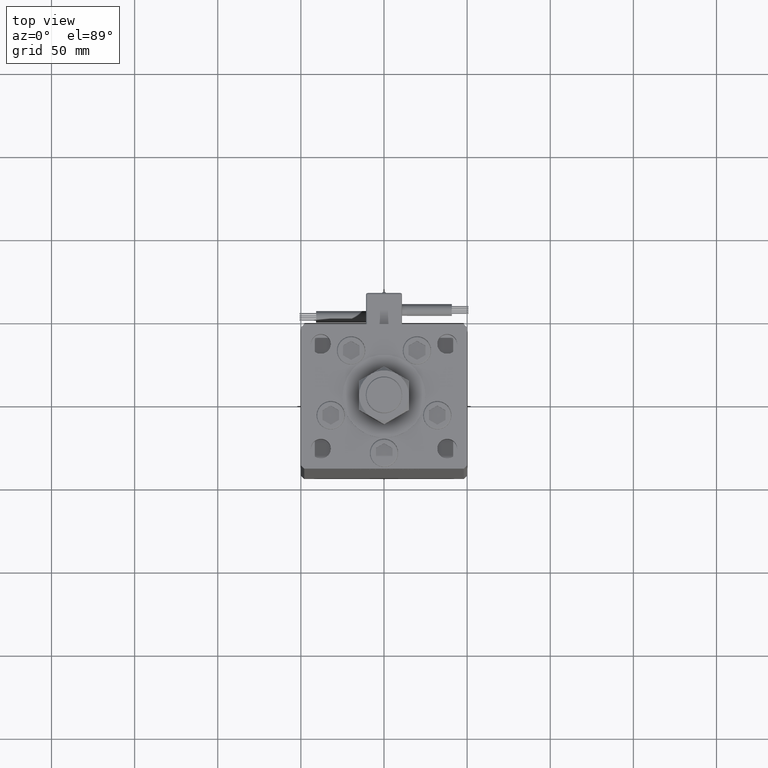
[diagram: clean part render]
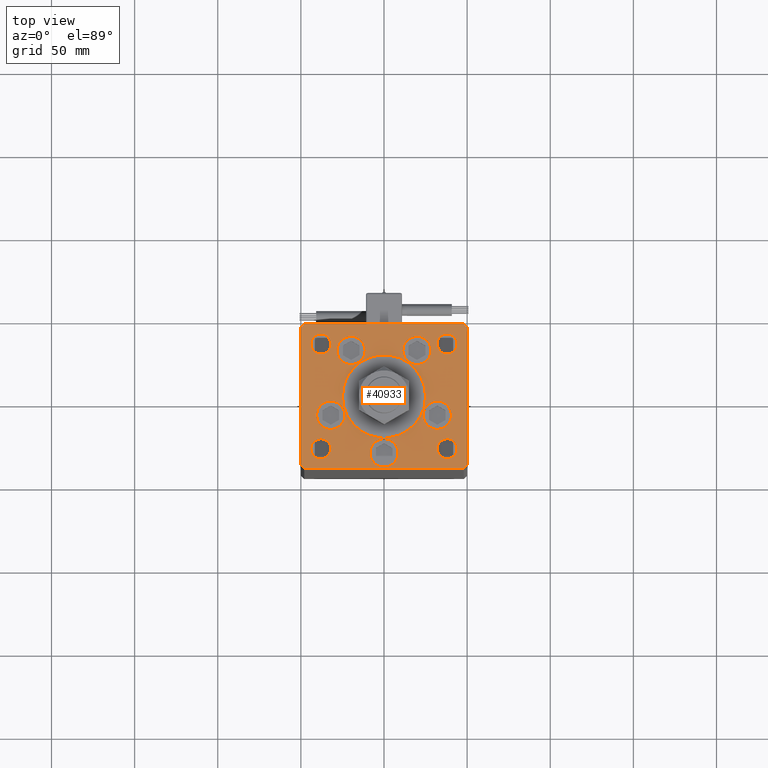
[diagram: same view with one face highlighted and labeled with its STEP entity id]
A machine part, top view. The second image highlights one B-rep face of the part: STEP entity #40933.
In plain terms, the highlighted planar face has unit normal (0, 0, 1).
Its self-contained STEP definition (entity closure, byte-faithful):
#943 = EDGE_CURVE ( 'NONE', #27503, #17946, #10456, .T. ) ;
#1090 = CARTESIAN_POINT ( 'NONE',  ( 32.00000000000000000, 31.50000000000000000, 0.000000000000000000 ) ) ;
#1345 = DIRECTION ( 'NONE',  ( 1.000000000000000000, 0.000000000000000000, 0.000000000000000000 ) ) ;
#1443 = EDGE_CURVE ( 'NONE', #28434, #38437, #25243, .T. ) ;
#1500 = CARTESIAN_POINT ( 'NONE',  ( 44.00000000000001421, -31.50000000000000711, 0.000000000000000000 ) ) ;
#1610 = ORIENTED_EDGE ( 'NONE', *, *, #32840, .T. ) ;
#1809 = CARTESIAN_POINT ( 'NONE',  ( -50.00000000000000711, 41.49999999999999289, 0.000000000000000000 ) ) ;
#1891 = EDGE_CURVE ( 'NONE', #37042, #15103, #17235, .T. ) ;
#2333 = EDGE_CURVE ( 'NONE', #27229, #22838, #11717, .T. ) ;
#2434 = DIRECTION ( 'NONE',  ( 1.000000000000000000, 0.000000000000000000, 0.000000000000000000 ) ) ;
#2493 = DIRECTION ( 'NONE',  ( 1.000000000000000000, 0.000000000000000000, 0.000000000000000000 ) ) ;
#2782 = EDGE_CURVE ( 'NONE', #22838, #27229, #19124, .T. ) ;
#2933 = CARTESIAN_POINT ( 'NONE',  ( -25.00000000000000000, -6.938893903907228378E-15, 0.000000000000000000 ) ) ;
#3381 = DIRECTION ( 'NONE',  ( 1.000000000000000000, 0.000000000000000000, 0.000000000000000000 ) ) ;
#3580 = DIRECTION ( 'NONE',  ( 0.000000000000000000, 0.000000000000000000, 1.000000000000000000 ) ) ;
#3759 = CARTESIAN_POINT ( 'NONE',  ( 50.00000000000000000, 41.50000000000000711, 0.000000000000000000 ) ) ;
#4202 = ORIENTED_EDGE ( 'NONE', *, *, #26352, .T. ) ;
#4439 = CARTESIAN_POINT ( 'NONE',  ( 32.00000000000000000, -31.50000000000000711, 0.000000000000000000 ) ) ;
#4495 = DIRECTION ( 'NONE',  ( 0.000000000000000000, 0.000000000000000000, 1.000000000000000000 ) ) ;
#4760 = VERTEX_POINT ( 'NONE', #42660 ) ;
#4927 = CARTESIAN_POINT ( 'NONE',  ( 38.00000000000000711, -31.50000000000000711, 0.000000000000000000 ) ) ;
#4936 = FACE_BOUND ( 'NONE', #13083, .T. ) ;
#5200 = DIRECTION ( 'NONE',  ( -0.000000000000000000, -0.000000000000000000, -1.000000000000000000 ) ) ;
#5339 = ORIENTED_EDGE ( 'NONE', *, *, #46168, .T. ) ;
#5560 = CARTESIAN_POINT ( 'NONE',  ( 38.00000000000000000, 31.50000000000000000, 0.000000000000000000 ) ) ;
#5737 = CARTESIAN_POINT ( 'NONE',  ( 48.00000000000000711, -43.49999999999992184, 0.000000000000000000 ) ) ;
#6134 = DIRECTION ( 'NONE',  ( -0.7071067811865536790, -0.7071067811865414665, 0.000000000000000000 ) ) ;
#6258 = DIRECTION ( 'NONE',  ( 1.000000000000000000, 0.000000000000000000, 0.000000000000000000 ) ) ;
#6315 = AXIS2_PLACEMENT_3D ( 'NONE', #15520, #50049, #46014 ) ;
#6523 = CARTESIAN_POINT ( 'NONE',  ( 23.55550741379015633, -11.33333333333332682, 0.000000000000000000 ) ) ;
#6756 = ORIENTED_EDGE ( 'NONE', *, *, #943, .F. ) ;
#6995 = EDGE_CURVE ( 'NONE', #15676, #12590, #18632, .T. ) ;
#7732 = DIRECTION ( 'NONE',  ( 0.000000000000000000, 0.000000000000000000, 1.000000000000000000 ) ) ;
#7810 = CARTESIAN_POINT ( 'NONE',  ( -50.00000000000000711, 41.49999999999999289, 0.000000000000000000 ) ) ;
#7886 = ORIENTED_EDGE ( 'NONE', *, *, #1443, .F. ) ;
#8276 = VECTOR ( 'NONE', #52710, 1000.000000000000000 ) ;
#8546 = DIRECTION ( 'NONE',  ( 1.000000000000000000, 0.000000000000000000, 0.000000000000000000 ) ) ;
#8712 = VERTEX_POINT ( 'NONE', #55560 ) ;
#9229 = EDGE_CURVE ( 'NONE', #12590, #15562, #22505, .T. ) ;
#9269 = FACE_OUTER_BOUND ( 'NONE', #51298, .T. ) ;
#9365 = CARTESIAN_POINT ( 'NONE',  ( -8.500000000000000000, -34.00000000000000000, 0.000000000000000000 ) ) ;
#9755 = CIRCLE ( 'NONE', #53852, 25.00000000000000000 ) ;
#9765 = VERTEX_POINT ( 'NONE', #9365 ) ;
#10456 = CIRCLE ( 'NONE', #42585, 8.500000000000000000 ) ;
#10830 = CIRCLE ( 'NONE', #16309, 5.999999999999998224 ) ;
#10929 = AXIS2_PLACEMENT_3D ( 'NONE', #32946, #37554, #50489 ) ;
#11698 = ORIENTED_EDGE ( 'NONE', *, *, #2333, .F. ) ;
#11717 = CIRCLE ( 'NONE', #18132, 5.999999999999998224 ) ;
#11949 = CARTESIAN_POINT ( 'NONE',  ( 50.00000000000000000, 41.50000000000000711, 0.000000000000000000 ) ) ;
#12120 = LINE ( 'NONE', #55826, #25130 ) ;
#12469 = CARTESIAN_POINT ( 'NONE',  ( 19.82068048781374969, 27.62499999999998934, 0.000000000000000000 ) ) ;
#12552 = ORIENTED_EDGE ( 'NONE', *, *, #49939, .T. ) ;
#12590 = VERTEX_POINT ( 'NONE', #26617 ) ;
#13083 = EDGE_LOOP ( 'NONE', ( #27819, #12552 ) ) ;
#13677 = CIRCLE ( 'NONE', #10929, 8.500000000000000000 ) ;
#13689 = CARTESIAN_POINT ( 'NONE',  ( -19.82068048781374969, 27.62499999999998934, 0.000000000000000000 ) ) ;
#14471 = AXIS2_PLACEMENT_3D ( 'NONE', #4927, #35152, #48949 ) ;
#15096 = EDGE_CURVE ( 'NONE', #15103, #37042, #34096, .T. ) ;
#15103 = VERTEX_POINT ( 'NONE', #47670 ) ;
#15449 = ORIENTED_EDGE ( 'NONE', *, *, #32297, .T. ) ;
#15520 = CARTESIAN_POINT ( 'NONE',  ( 32.05550741379015989, -11.33333333333332860, 0.000000000000000000 ) ) ;
#15562 = VERTEX_POINT ( 'NONE', #50159 ) ;
#15626 = VERTEX_POINT ( 'NONE', #42650 ) ;
#15676 = VERTEX_POINT ( 'NONE', #20778 ) ;
#15885 = CARTESIAN_POINT ( 'NONE',  ( -11.32068048781375147, 27.62499999999998934, 0.000000000000000000 ) ) ;
#16309 = AXIS2_PLACEMENT_3D ( 'NONE', #31676, #5200, #53822 ) ;
#16385 = AXIS2_PLACEMENT_3D ( 'NONE', #50773, #41869, #1345 ) ;
#16647 = AXIS2_PLACEMENT_3D ( 'NONE', #51115, #46809, #42491 ) ;
#16734 = VERTEX_POINT ( 'NONE', #1500 ) ;
#17130 = ORIENTED_EDGE ( 'NONE', *, *, #6995, .T. ) ;
#17235 = CIRCLE ( 'NONE', #28239, 6.000000000000005329 ) ;
#17898 = FACE_BOUND ( 'NONE', #45267, .T. ) ;
#17946 = VERTEX_POINT ( 'NONE', #34838 ) ;
#17968 = CIRCLE ( 'NONE', #50115, 6.000000000000005329 ) ;
#17989 = ORIENTED_EDGE ( 'NONE', *, *, #20305, .F. ) ;
#18009 = CARTESIAN_POINT ( 'NONE',  ( 40.55550741379015989, -11.33333333333332860, 0.000000000000000000 ) ) ;
#18132 = AXIS2_PLACEMENT_3D ( 'NONE', #5560, #32310, #18801 ) ;
#18161 = CIRCLE ( 'NONE', #14471, 6.000000000000005329 ) ;
#18292 = DIRECTION ( 'NONE',  ( 1.000000000000000000, 0.000000000000000000, 0.000000000000000000 ) ) ;
#18352 = CARTESIAN_POINT ( 'NONE',  ( -50.00000000000000000, -41.50000000000004263, 0.000000000000000000 ) ) ;
#18467 = FACE_BOUND ( 'NONE', #34032, .T. ) ;
#18632 = LINE ( 'NONE', #18352, #37596 ) ;
#18801 = DIRECTION ( 'NONE',  ( 1.000000000000000000, 0.000000000000000000, 0.000000000000000000 ) ) ;
#19097 = ORIENTED_EDGE ( 'NONE', *, *, #49542, .F. ) ;
#19124 = CIRCLE ( 'NONE', #36591, 5.999999999999998224 ) ;
#19228 = ORIENTED_EDGE ( 'NONE', *, *, #1891, .F. ) ;
#19254 = LINE ( 'NONE', #5737, #55455 ) ;
#19979 = CARTESIAN_POINT ( 'NONE',  ( 47.99999999999999289, 43.50000000000000000, 0.000000000000000000 ) ) ;
#20305 = EDGE_CURVE ( 'NONE', #9765, #44774, #39806, .T. ) ;
#20485 = AXIS2_PLACEMENT_3D ( 'NONE', #56575, #30113, #8546 ) ;
#20778 = CARTESIAN_POINT ( 'NONE',  ( -50.00000000000000000, -41.50000000000004263, 0.000000000000000000 ) ) ;
#21750 = EDGE_CURVE ( 'NONE', #29264, #35156, #12120, .T. ) ;
#21918 = FACE_BOUND ( 'NONE', #48090, .T. ) ;
#21998 = DIRECTION ( 'NONE',  ( -0.000000000000000000, -0.000000000000000000, -1.000000000000000000 ) ) ;
#22401 = ORIENTED_EDGE ( 'NONE', *, *, #52169, .F. ) ;
#22488 = FACE_BOUND ( 'NONE', #40945, .T. ) ;
#22505 = LINE ( 'NONE', #52146, #8276 ) ;
#22628 = CARTESIAN_POINT ( 'NONE',  ( 8.500000000000000000, -34.00000000000000000, 0.000000000000000000 ) ) ;
#22680 = CARTESIAN_POINT ( 'NONE',  ( -28.32068048781375325, 27.62499999999998934, 0.000000000000000000 ) ) ;
#22838 = VERTEX_POINT ( 'NONE', #41152 ) ;
#23179 = DIRECTION ( 'NONE',  ( 0.000000000000000000, 0.000000000000000000, 1.000000000000000000 ) ) ;
#24184 = EDGE_LOOP ( 'NONE', ( #5339, #48793 ) ) ;
#24396 = AXIS2_PLACEMENT_3D ( 'NONE', #35736, #39476, #52978 ) ;
#24958 = CARTESIAN_POINT ( 'NONE',  ( 32.05550741379015989, -11.33333333333332860, 0.000000000000000000 ) ) ;
#25130 = VECTOR ( 'NONE', #56403, 1000.000000000000000 ) ;
#25243 = CIRCLE ( 'NONE', #6315, 8.500000000000000000 ) ;
#25346 = DIRECTION ( 'NONE',  ( -0.7071067811865512365, 0.7071067811865439090, 0.000000000000000000 ) ) ;
#25861 = CARTESIAN_POINT ( 'NONE',  ( -32.05550741379015989, -11.33333333333332860, 0.000000000000000000 ) ) ;
#26352 = EDGE_CURVE ( 'NONE', #15562, #15626, #19254, .T. ) ;
#26617 = CARTESIAN_POINT ( 'NONE',  ( -48.00000000000000711, -43.50000000000002842, 0.000000000000000000 ) ) ;
#26745 = VERTEX_POINT ( 'NONE', #26907 ) ;
#26785 = VERTEX_POINT ( 'NONE', #31494 ) ;
#26907 = CARTESIAN_POINT ( 'NONE',  ( -44.00000000000000000, 31.50000000000000000, 0.000000000000000000 ) ) ;
#26991 = DIRECTION ( 'NONE',  ( 0.7071067811865487940, -0.7071067811865463515, 0.000000000000000000 ) ) ;
#27102 = EDGE_LOOP ( 'NONE', ( #33820, #37547 ) ) ;
#27204 = EDGE_LOOP ( 'NONE', ( #22401, #42928 ) ) ;
#27229 = VERTEX_POINT ( 'NONE', #1090 ) ;
#27343 = DIRECTION ( 'NONE',  ( 0.000000000000000000, 1.000000000000000000, 0.000000000000000000 ) ) ;
#27503 = VERTEX_POINT ( 'NONE', #56819 ) ;
#27563 = CARTESIAN_POINT ( 'NONE',  ( 0.000000000000000000, -6.938893903907228378E-15, 0.000000000000000000 ) ) ;
#27714 = LINE ( 'NONE', #1809, #36211 ) ;
#27819 = ORIENTED_EDGE ( 'NONE', *, *, #45536, .T. ) ;
#27956 = AXIS2_PLACEMENT_3D ( 'NONE', #13689, #7732, #18292 ) ;
#28239 = AXIS2_PLACEMENT_3D ( 'NONE', #44770, #23179, #40734 ) ;
#28434 = VERTEX_POINT ( 'NONE', #18009 ) ;
#28496 = CARTESIAN_POINT ( 'NONE',  ( -32.00000000000000000, -31.50000000000000711, 0.000000000000000000 ) ) ;
#29264 = VERTEX_POINT ( 'NONE', #19979 ) ;
#29622 = VERTEX_POINT ( 'NONE', #15885 ) ;
#29822 = ORIENTED_EDGE ( 'NONE', *, *, #2782, .F. ) ;
#29878 = DIRECTION ( 'NONE',  ( 1.000000000000000000, 0.000000000000000000, 0.000000000000000000 ) ) ;
#30059 = VERTEX_POINT ( 'NONE', #53394 ) ;
#30113 = DIRECTION ( 'NONE',  ( 0.000000000000000000, 0.000000000000000000, 1.000000000000000000 ) ) ;
#30586 = EDGE_LOOP ( 'NONE', ( #7886, #43962 ) ) ;
#31121 = FACE_BOUND ( 'NONE', #30586, .T. ) ;
#31494 = CARTESIAN_POINT ( 'NONE',  ( -40.55550741379015989, -11.33333333333332682, 0.000000000000000000 ) ) ;
#31676 = CARTESIAN_POINT ( 'NONE',  ( -38.00000000000000000, 31.50000000000000000, 0.000000000000000000 ) ) ;
#32297 = EDGE_CURVE ( 'NONE', #41730, #29264, #38862, .T. ) ;
#32310 = DIRECTION ( 'NONE',  ( 0.000000000000000000, 0.000000000000000000, 1.000000000000000000 ) ) ;
#32598 = EDGE_CURVE ( 'NONE', #34318, #29622, #49996, .T. ) ;
#32691 = EDGE_CURVE ( 'NONE', #44774, #9765, #55466, .T. ) ;
#32840 = EDGE_CURVE ( 'NONE', #50652, #15676, #27714, .T. ) ;
#32946 = CARTESIAN_POINT ( 'NONE',  ( -19.82068048781374969, 27.62499999999998934, 0.000000000000000000 ) ) ;
#33012 = CIRCLE ( 'NONE', #39429, 8.500000000000000000 ) ;
#33628 = DIRECTION ( 'NONE',  ( 0.000000000000000000, 0.000000000000000000, 1.000000000000000000 ) ) ;
#33701 = VERTEX_POINT ( 'NONE', #2933 ) ;
#33820 = ORIENTED_EDGE ( 'NONE', *, *, #53129, .F. ) ;
#33873 = DIRECTION ( 'NONE',  ( 0.000000000000000000, 0.000000000000000000, 1.000000000000000000 ) ) ;
#34032 = EDGE_LOOP ( 'NONE', ( #6756, #19097 ) ) ;
#34096 = CIRCLE ( 'NONE', #16647, 6.000000000000005329 ) ;
#34318 = VERTEX_POINT ( 'NONE', #22680 ) ;
#34838 = CARTESIAN_POINT ( 'NONE',  ( 11.32068048781375147, 27.62499999999998934, 0.000000000000000000 ) ) ;
#35152 = DIRECTION ( 'NONE',  ( -0.000000000000000000, -0.000000000000000000, -1.000000000000000000 ) ) ;
#35156 = VERTEX_POINT ( 'NONE', #41654 ) ;
#35444 = PLANE ( 'NONE',  #24396 ) ;
#35736 = CARTESIAN_POINT ( 'NONE',  ( 0.000000000000000000, 0.000000000000000000, 0.000000000000000000 ) ) ;
#35866 = DIRECTION ( 'NONE',  ( 1.000000000000000000, 0.000000000000000000, 0.000000000000000000 ) ) ;
#35972 = CARTESIAN_POINT ( 'NONE',  ( 50.00000000000000000, -41.49999999999992895, 0.000000000000000000 ) ) ;
#36017 = FACE_BOUND ( 'NONE', #38838, .T. ) ;
#36211 = VECTOR ( 'NONE', #53592, 1000.000000000000000 ) ;
#36420 = EDGE_CURVE ( 'NONE', #55332, #16734, #17968, .T. ) ;
#36439 = CARTESIAN_POINT ( 'NONE',  ( 38.00000000000000000, 31.50000000000000000, 0.000000000000000000 ) ) ;
#36544 = DIRECTION ( 'NONE',  ( -0.000000000000000000, -0.000000000000000000, -1.000000000000000000 ) ) ;
#36591 = AXIS2_PLACEMENT_3D ( 'NONE', #36439, #4495, #35866 ) ;
#36925 = CARTESIAN_POINT ( 'NONE',  ( -48.00000000000000000, 43.49999999999997158, 0.000000000000000000 ) ) ;
#37042 = VERTEX_POINT ( 'NONE', #28496 ) ;
#37359 = EDGE_CURVE ( 'NONE', #38437, #28434, #45443, .T. ) ;
#37547 = ORIENTED_EDGE ( 'NONE', *, *, #32598, .F. ) ;
#37554 = DIRECTION ( 'NONE',  ( 0.000000000000000000, 0.000000000000000000, 1.000000000000000000 ) ) ;
#37596 = VECTOR ( 'NONE', #26991, 1000.000000000000000 ) ;
#37873 = ORIENTED_EDGE ( 'NONE', *, *, #32691, .F. ) ;
#38069 = AXIS2_PLACEMENT_3D ( 'NONE', #24958, #33873, #3381 ) ;
#38437 = VERTEX_POINT ( 'NONE', #6523 ) ;
#38838 = EDGE_LOOP ( 'NONE', ( #37873, #17989 ) ) ;
#38862 = LINE ( 'NONE', #3759, #43548 ) ;
#39214 = DIRECTION ( 'NONE',  ( 0.000000000000000000, 0.000000000000000000, 1.000000000000000000 ) ) ;
#39429 = AXIS2_PLACEMENT_3D ( 'NONE', #25861, #33628, #29878 ) ;
#39476 = DIRECTION ( 'NONE',  ( -0.000000000000000000, 0.000000000000000000, 1.000000000000000000 ) ) ;
#39706 = DIRECTION ( 'NONE',  ( -1.000000000000000000, 0.000000000000000000, 0.000000000000000000 ) ) ;
#39771 = EDGE_CURVE ( 'NONE', #4760, #33701, #51001, .T. ) ;
#39806 = CIRCLE ( 'NONE', #20485, 8.500000000000000000 ) ;
#40343 = CIRCLE ( 'NONE', #43990, 8.500000000000000000 ) ;
#40614 = FACE_BOUND ( 'NONE', #27102, .T. ) ;
#40734 = DIRECTION ( 'NONE',  ( 1.000000000000000000, 0.000000000000000000, 0.000000000000000000 ) ) ;
#40933 = ADVANCED_FACE ( 'NONE', ( #21918, #40614, #18467, #31121, #36017, #53547, #4936, #22488, #17898, #9269, #48955 ), #35444, .T. ) ;
#40945 = EDGE_LOOP ( 'NONE', ( #29822, #11698 ) ) ;
#41152 = CARTESIAN_POINT ( 'NONE',  ( 44.00000000000000000, 31.50000000000000000, 0.000000000000000000 ) ) ;
#41654 = CARTESIAN_POINT ( 'NONE',  ( -48.00000000000000000, 43.49999999999997158, 0.000000000000000000 ) ) ;
#41730 = VERTEX_POINT ( 'NONE', #11949 ) ;
#41846 = DIRECTION ( 'NONE',  ( 0.000000000000000000, 0.000000000000000000, 1.000000000000000000 ) ) ;
#41869 = DIRECTION ( 'NONE',  ( 0.000000000000000000, 0.000000000000000000, 1.000000000000000000 ) ) ;
#41903 = DIRECTION ( 'NONE',  ( 0.000000000000000000, 0.000000000000000000, 1.000000000000000000 ) ) ;
#42225 = EDGE_CURVE ( 'NONE', #33701, #4760, #9755, .T. ) ;
#42491 = DIRECTION ( 'NONE',  ( 1.000000000000000000, 0.000000000000000000, 0.000000000000000000 ) ) ;
#42585 = AXIS2_PLACEMENT_3D ( 'NONE', #46504, #41903, #2493 ) ;
#42650 = CARTESIAN_POINT ( 'NONE',  ( 50.00000000000000000, -41.49999999999992895, 0.000000000000000000 ) ) ;
#42660 = CARTESIAN_POINT ( 'NONE',  ( 25.00000000000000000, -3.877276906038844941E-15, 0.000000000000000000 ) ) ;
#42710 = DIRECTION ( 'NONE',  ( 1.000000000000000000, 0.000000000000000000, 0.000000000000000000 ) ) ;
#42928 = ORIENTED_EDGE ( 'NONE', *, *, #50974, .F. ) ;
#43548 = VECTOR ( 'NONE', #25346, 999.9999999999998863 ) ;
#43962 = ORIENTED_EDGE ( 'NONE', *, *, #37359, .F. ) ;
#43990 = AXIS2_PLACEMENT_3D ( 'NONE', #12469, #39214, #47559 ) ;
#44770 = CARTESIAN_POINT ( 'NONE',  ( -38.00000000000000711, -31.50000000000000711, 0.000000000000000000 ) ) ;
#44774 = VERTEX_POINT ( 'NONE', #22628 ) ;
#44895 = AXIS2_PLACEMENT_3D ( 'NONE', #49476, #36544, #39706 ) ;
#44987 = ORIENTED_EDGE ( 'NONE', *, *, #15096, .F. ) ;
#45054 = ORIENTED_EDGE ( 'NONE', *, *, #56619, .T. ) ;
#45108 = DIRECTION ( 'NONE',  ( 0.000000000000000000, 0.000000000000000000, 1.000000000000000000 ) ) ;
#45267 = EDGE_LOOP ( 'NONE', ( #19228, #44987 ) ) ;
#45443 = CIRCLE ( 'NONE', #38069, 8.500000000000000000 ) ;
#45536 = EDGE_CURVE ( 'NONE', #8712, #26745, #10830, .T. ) ;
#45554 = LINE ( 'NONE', #36925, #48617 ) ;
#46014 = DIRECTION ( 'NONE',  ( 1.000000000000000000, 0.000000000000000000, 0.000000000000000000 ) ) ;
#46168 = EDGE_CURVE ( 'NONE', #16734, #55332, #18161, .T. ) ;
#46504 = CARTESIAN_POINT ( 'NONE',  ( 19.82068048781374969, 27.62499999999998934, 0.000000000000000000 ) ) ;
#46809 = DIRECTION ( 'NONE',  ( 0.000000000000000000, 0.000000000000000000, 1.000000000000000000 ) ) ;
#46842 = VECTOR ( 'NONE', #27343, 1000.000000000000000 ) ;
#47023 = CARTESIAN_POINT ( 'NONE',  ( 0.000000000000000000, -6.938893903907228378E-15, 0.000000000000000000 ) ) ;
#47319 = AXIS2_PLACEMENT_3D ( 'NONE', #47023, #3580, #42710 ) ;
#47559 = DIRECTION ( 'NONE',  ( 1.000000000000000000, 0.000000000000000000, 0.000000000000000000 ) ) ;
#47670 = CARTESIAN_POINT ( 'NONE',  ( -44.00000000000001421, -31.50000000000000711, 0.000000000000000000 ) ) ;
#48090 = EDGE_LOOP ( 'NONE', ( #56599, #48482 ) ) ;
#48176 = CARTESIAN_POINT ( 'NONE',  ( 38.00000000000000711, -31.50000000000000711, 0.000000000000000000 ) ) ;
#48482 = ORIENTED_EDGE ( 'NONE', *, *, #39771, .F. ) ;
#48617 = VECTOR ( 'NONE', #6134, 1000.000000000000000 ) ;
#48793 = ORIENTED_EDGE ( 'NONE', *, *, #36420, .T. ) ;
#48949 = DIRECTION ( 'NONE',  ( -1.000000000000000000, 0.000000000000000000, 0.000000000000000000 ) ) ;
#48955 = FACE_BOUND ( 'NONE', #24184, .T. ) ;
#49476 = CARTESIAN_POINT ( 'NONE',  ( -38.00000000000000000, 31.50000000000000000, 0.000000000000000000 ) ) ;
#49542 = EDGE_CURVE ( 'NONE', #17946, #27503, #40343, .T. ) ;
#49939 = EDGE_CURVE ( 'NONE', #26745, #8712, #50427, .T. ) ;
#49996 = CIRCLE ( 'NONE', #27956, 8.500000000000000000 ) ;
#50049 = DIRECTION ( 'NONE',  ( 0.000000000000000000, 0.000000000000000000, 1.000000000000000000 ) ) ;
#50115 = AXIS2_PLACEMENT_3D ( 'NONE', #48176, #21998, #53344 ) ;
#50159 = CARTESIAN_POINT ( 'NONE',  ( 48.00000000000000711, -43.49999999999992184, 0.000000000000000000 ) ) ;
#50427 = CIRCLE ( 'NONE', #44895, 5.999999999999998224 ) ;
#50489 = DIRECTION ( 'NONE',  ( 1.000000000000000000, 0.000000000000000000, 0.000000000000000000 ) ) ;
#50652 = VERTEX_POINT ( 'NONE', #7810 ) ;
#50773 = CARTESIAN_POINT ( 'NONE',  ( -32.05550741379015989, -11.33333333333332860, 0.000000000000000000 ) ) ;
#50974 = EDGE_CURVE ( 'NONE', #26785, #30059, #33012, .T. ) ;
#51001 = CIRCLE ( 'NONE', #47319, 25.00000000000000000 ) ;
#51115 = CARTESIAN_POINT ( 'NONE',  ( -38.00000000000000711, -31.50000000000000711, 0.000000000000000000 ) ) ;
#51291 = EDGE_CURVE ( 'NONE', #35156, #50652, #45554, .T. ) ;
#51298 = EDGE_LOOP ( 'NONE', ( #17130, #51990, #4202, #45054, #15449, #56234, #53409, #1610 ) ) ;
#51990 = ORIENTED_EDGE ( 'NONE', *, *, #9229, .T. ) ;
#52146 = CARTESIAN_POINT ( 'NONE',  ( -48.00000000000000711, -43.50000000000002842, 0.000000000000000000 ) ) ;
#52169 = EDGE_CURVE ( 'NONE', #30059, #26785, #56906, .T. ) ;
#52710 = DIRECTION ( 'NONE',  ( 1.000000000000000000, 1.156482317317871331E-15, 0.000000000000000000 ) ) ;
#52978 = DIRECTION ( 'NONE',  ( 1.000000000000000000, 0.000000000000000000, 0.000000000000000000 ) ) ;
#53129 = EDGE_CURVE ( 'NONE', #29622, #34318, #13677, .T. ) ;
#53344 = DIRECTION ( 'NONE',  ( -1.000000000000000000, 0.000000000000000000, 0.000000000000000000 ) ) ;
#53394 = CARTESIAN_POINT ( 'NONE',  ( -23.55550741379015989, -11.33333333333332860, 0.000000000000000000 ) ) ;
#53409 = ORIENTED_EDGE ( 'NONE', *, *, #51291, .T. ) ;
#53547 = FACE_BOUND ( 'NONE', #27204, .T. ) ;
#53592 = DIRECTION ( 'NONE',  ( 8.360113137237620037E-17, -1.000000000000000000, 0.000000000000000000 ) ) ;
#53780 = DIRECTION ( 'NONE',  ( 0.7071067811865474617, 0.7071067811865474617, 0.000000000000000000 ) ) ;
#53822 = DIRECTION ( 'NONE',  ( -1.000000000000000000, 0.000000000000000000, 0.000000000000000000 ) ) ;
#53852 = AXIS2_PLACEMENT_3D ( 'NONE', #27563, #45108, #6258 ) ;
#54361 = LINE ( 'NONE', #35972, #46842 ) ;
#54584 = AXIS2_PLACEMENT_3D ( 'NONE', #55060, #41846, #2434 ) ;
#55060 = CARTESIAN_POINT ( 'NONE',  ( 0.000000000000000000, -34.00000000000000000, 0.000000000000000000 ) ) ;
#55332 = VERTEX_POINT ( 'NONE', #4439 ) ;
#55455 = VECTOR ( 'NONE', #53780, 1000.000000000000114 ) ;
#55466 = CIRCLE ( 'NONE', #54584, 8.500000000000000000 ) ;
#55560 = CARTESIAN_POINT ( 'NONE',  ( -32.00000000000000000, 31.50000000000000000, 0.000000000000000000 ) ) ;
#55826 = CARTESIAN_POINT ( 'NONE',  ( 47.99999999999999289, 43.50000000000000000, 0.000000000000000000 ) ) ;
#56234 = ORIENTED_EDGE ( 'NONE', *, *, #21750, .T. ) ;
#56403 = DIRECTION ( 'NONE',  ( -1.000000000000000000, -2.891205793294678326E-16, 0.000000000000000000 ) ) ;
#56575 = CARTESIAN_POINT ( 'NONE',  ( 0.000000000000000000, -34.00000000000000000, 0.000000000000000000 ) ) ;
#56599 = ORIENTED_EDGE ( 'NONE', *, *, #42225, .F. ) ;
#56619 = EDGE_CURVE ( 'NONE', #15626, #41730, #54361, .T. ) ;
#56819 = CARTESIAN_POINT ( 'NONE',  ( 28.32068048781375325, 27.62499999999998934, 0.000000000000000000 ) ) ;
#56906 = CIRCLE ( 'NONE', #16385, 8.500000000000000000 ) ;